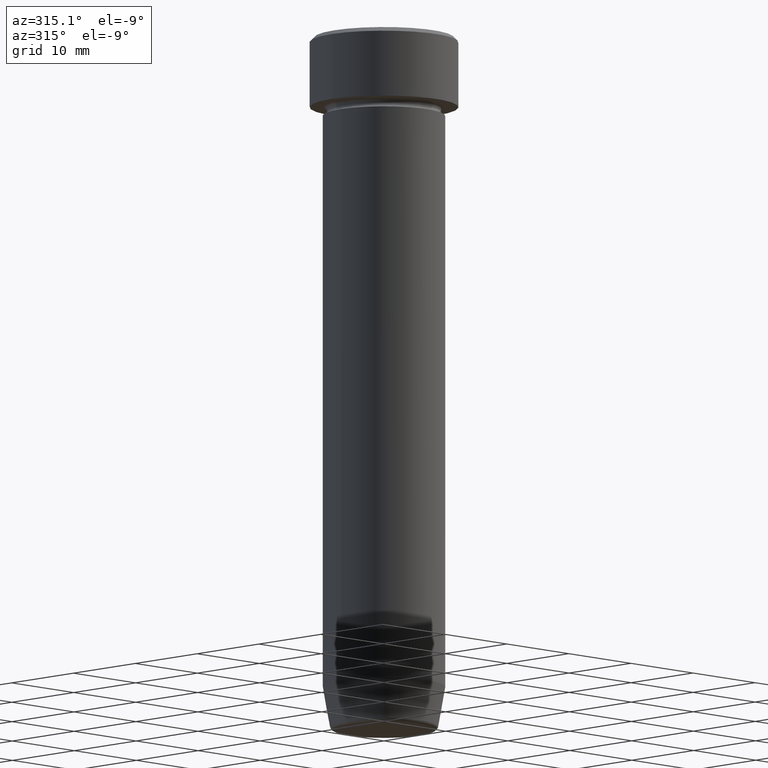
[diagram: clean part render]
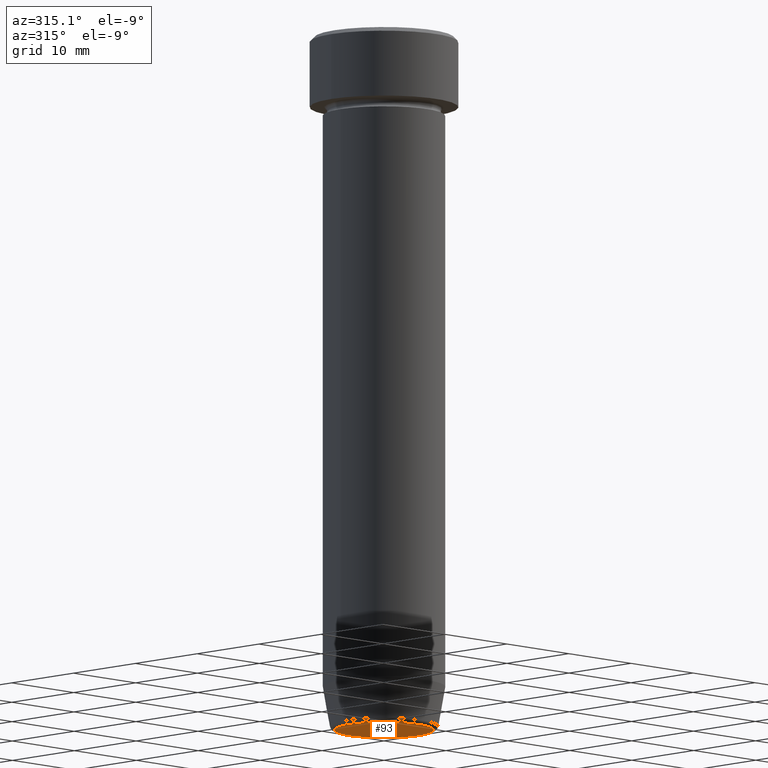
[diagram: same view with one face highlighted and labeled with its STEP entity id]
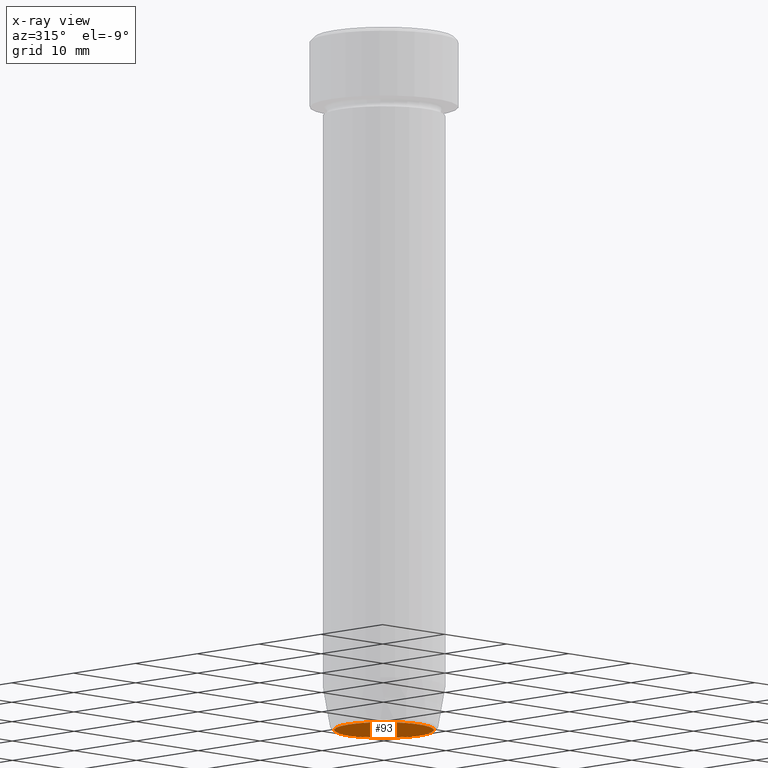
[diagram: x-ray of the same camera — body ghosted, the highlighted face saturated]
A machine part, auxiliary view. The second image highlights one B-rep face of the part: STEP entity #93.
The next image is the same camera in x-ray: the body ghosted, the highlighted face saturated — about 0% of this face is hidden behind the body in this view.
In plain terms, the highlighted planar face has unit normal (0, -0, 1).
Its self-contained STEP definition (entity closure, byte-faithful):
#26 = DIRECTION ( 'NONE',  ( 0.000000000000000000, 0.000000000000000000, -1.000000000000000000 ) ) ;
#37 = PLANE ( 'NONE',  #54 ) ;
#54 = AXIS2_PLACEMENT_3D ( 'NONE', #153, #598, #394 ) ;
#56 = ORIENTED_EDGE ( 'NONE', *, *, #265, .T. ) ;
#80 = CARTESIAN_POINT ( 'NONE',  ( 0.000000000000000000, 0.000000000000000000, -80.00000000000001421 ) ) ;
#93 = ADVANCED_FACE ( 'NONE', ( #589 ), #37, .F. ) ;
#153 = CARTESIAN_POINT ( 'NONE',  ( 0.000000000000000000, 3.673940397442061544E-15, -80.00000000000001421 ) ) ;
#163 = CIRCLE ( 'NONE', #382, 5.698815280869032662 ) ;
#170 = DIRECTION ( 'NONE',  ( 1.000000000000000000, 0.000000000000000000, 0.000000000000000000 ) ) ;
#182 = CARTESIAN_POINT ( 'NONE',  ( 5.698815280869032662, 0.000000000000000000, -80.00000000000001421 ) ) ;
#218 = EDGE_CURVE ( 'NONE', #341, #560, #163, .T. ) ;
#252 = EDGE_LOOP ( 'NONE', ( #56, #355 ) ) ;
#265 = EDGE_CURVE ( 'NONE', #560, #341, #510, .T. ) ;
#331 = CARTESIAN_POINT ( 'NONE',  ( -5.698815280869032662, 7.280546308273760746E-16, -80.00000000000001421 ) ) ;
#341 = VERTEX_POINT ( 'NONE', #331 ) ;
#355 = ORIENTED_EDGE ( 'NONE', *, *, #218, .T. ) ;
#382 = AXIS2_PLACEMENT_3D ( 'NONE', #388, #26, #591 ) ;
#388 = CARTESIAN_POINT ( 'NONE',  ( 0.000000000000000000, 0.000000000000000000, -80.00000000000001421 ) ) ;
#394 = DIRECTION ( 'NONE',  ( 1.000000000000000000, 0.000000000000000000, 0.000000000000000000 ) ) ;
#449 = DIRECTION ( 'NONE',  ( 0.000000000000000000, 0.000000000000000000, -1.000000000000000000 ) ) ;
#510 = CIRCLE ( 'NONE', #545, 5.698815280869032662 ) ;
#545 = AXIS2_PLACEMENT_3D ( 'NONE', #80, #449, #170 ) ;
#560 = VERTEX_POINT ( 'NONE', #182 ) ;
#589 = FACE_OUTER_BOUND ( 'NONE', #252, .T. ) ;
#591 = DIRECTION ( 'NONE',  ( 1.000000000000000000, 0.000000000000000000, 0.000000000000000000 ) ) ;
#598 = DIRECTION ( 'NONE',  ( 0.000000000000000000, -0.000000000000000000, 1.000000000000000000 ) ) ;